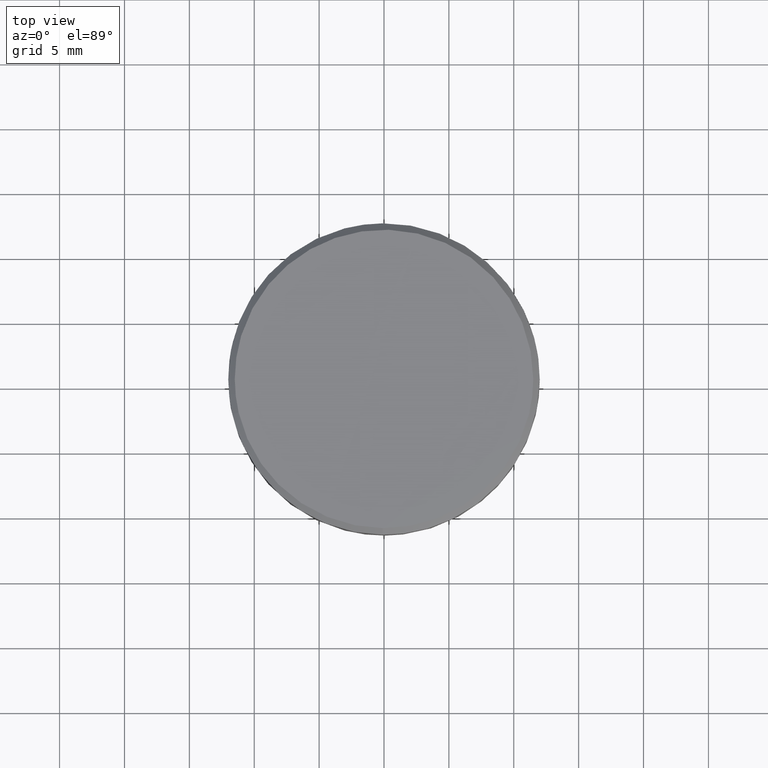
[diagram: clean part render]
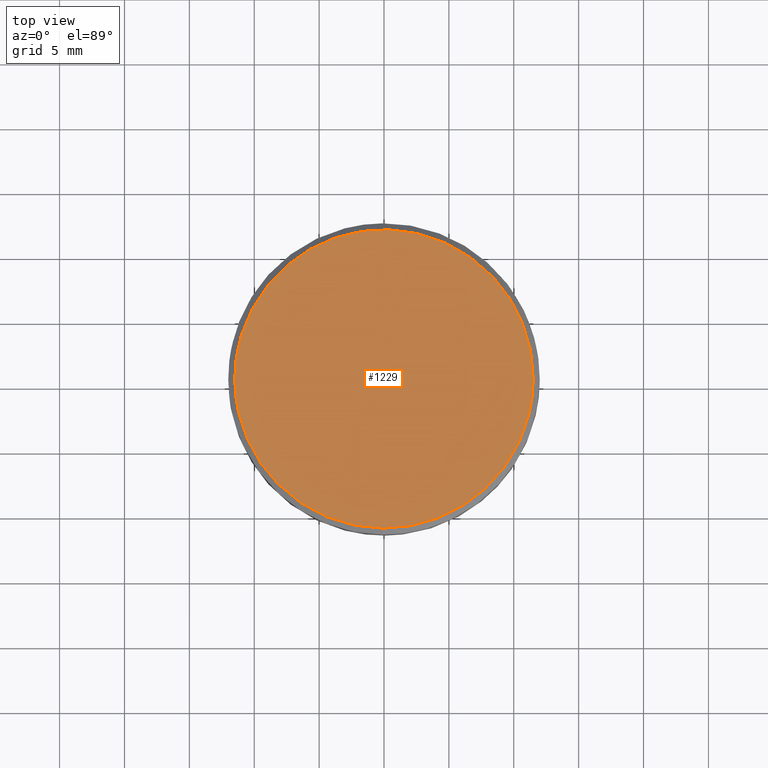
[diagram: same view with one face highlighted and labeled with its STEP entity id]
A machine part, top view. The second image highlights one B-rep face of the part: STEP entity #1229.
In plain terms, the highlighted face is a freeform B-spline surface patch.
Its self-contained STEP definition (entity closure, byte-faithful):
#288=CARTESIAN_POINT('',(-11.203508761551699,-2.594492518756421,14.999999999997851));
#289=VERTEX_POINT('',#288);
#295=CARTESIAN_POINT('',(-11.500000000000000,0.0,15.0));
#296=VERTEX_POINT('',#295);
#297=CARTESIAN_POINT('',(-11.500000000000000,0.0,15.0));
#298=CARTESIAN_POINT('',(-11.500000000000002,-1.314187347835726,14.999999999999998));
#299=CARTESIAN_POINT('',(-11.203508761551705,-2.594492518756421,14.999999999997852));
#307=(BOUNDED_CURVE()B_SPLINE_CURVE(2,(#297,#298,#299),.UNSPECIFIED.,.F.,.U.)B_SPLINE_CURVE_WITH_KNOTS((3,3),(0.500000000000000,0.538577028215916),.UNSPECIFIED.)CURVE()GEOMETRIC_REPRESENTATION_ITEM()RATIONAL_B_SPLINE_CURVE((1.0,0.954804200134332,0.923556557441934))REPRESENTATION_ITEM(''));
#308=EDGE_CURVE('',#296,#289,#307,.T.);
#310=CARTESIAN_POINT('',(11.500000000000000,0.0,15.0));
#311=VERTEX_POINT('',#310);
#312=CARTESIAN_POINT('',(11.500000000000000,0.0,15.0));
#313=CARTESIAN_POINT('',(11.500000000000000,11.500000000000000,14.999999999999995));
#314=CARTESIAN_POINT('',(0.0,11.500000000000000,15.0));
#315=CARTESIAN_POINT('',(-11.500000000000000,11.500000000000000,14.999999999999995));
#316=CARTESIAN_POINT('',(-11.500000000000000,0.0,15.0));
#324=(BOUNDED_CURVE()B_SPLINE_CURVE(2,(#312,#313,#314,#315,#316),.UNSPECIFIED.,.F.,.U.)B_SPLINE_CURVE_WITH_KNOTS((3,2,3),(0.0,0.250000000000000,0.500000000000000),.UNSPECIFIED.)CURVE()GEOMETRIC_REPRESENTATION_ITEM()RATIONAL_B_SPLINE_CURVE((1.0,0.707106781186548,1.0,0.707106781186548,1.0))REPRESENTATION_ITEM(''));
#325=EDGE_CURVE('',#311,#296,#324,.T.);
#327=CARTESIAN_POINT('',(-0.100355158268865,-11.499562115242730,14.999999999994881));
#328=VERTEX_POINT('',#327);
#329=CARTESIAN_POINT('',(-0.100355158268865,-11.499562115242728,14.999999999994886));
#330=CARTESIAN_POINT('',(-0.050178534475591,-11.499999999999996,14.999999999999998));
#331=CARTESIAN_POINT('',(0.0,-11.500000000000000,15.0));
#332=CARTESIAN_POINT('',(11.500000000000000,-11.500000000000000,14.999999999999995));
#333=CARTESIAN_POINT('',(11.500000000000000,0.0,15.0));
#341=(BOUNDED_CURVE()B_SPLINE_CURVE(2,(#329,#330,#331,#332,#333),.UNSPECIFIED.,.F.,.U.)B_SPLINE_CURVE_WITH_KNOTS((3,2,3),(0.748460105663863,0.750000000000000,1.0),.UNSPECIFIED.)CURVE()GEOMETRIC_REPRESENTATION_ITEM()RATIONAL_B_SPLINE_CURVE((0.996414028097746,0.998195901565025,1.0,0.707106781186548,1.0))REPRESENTATION_ITEM(''));
#342=EDGE_CURVE('',#328,#311,#341,.T.);
#444=CARTESIAN_POINT('',(-11.203508761551698,-2.594492518756420,14.999999999997854));
#445=CARTESIAN_POINT('',(-9.159593812550893,-11.420503337157657,14.999999999999995));
#446=CARTESIAN_POINT('',(-0.100355158268865,-11.499562115242725,14.999999999994884));
#454=(BOUNDED_CURVE()B_SPLINE_CURVE(2,(#444,#445,#446),.UNSPECIFIED.,.F.,.U.)B_SPLINE_CURVE_WITH_KNOTS((3,3),(0.538577028215916,0.748460105663863),.UNSPECIFIED.)CURVE()GEOMETRIC_REPRESENTATION_ITEM()RATIONAL_B_SPLINE_CURVE((0.923556557441935,0.753549905437348,0.996414028097745))REPRESENTATION_ITEM(''));
#455=EDGE_CURVE('',#289,#328,#454,.T.);
#1218=CARTESIAN_POINT('',(-12.648849955421539,-12.648390504168120,15.0));
#1219=CARTESIAN_POINT('',(12.648850572329611,-12.648390504168120,15.0));
#1220=CARTESIAN_POINT('',(-12.648849955421539,12.648828714536270,15.0));
#1221=CARTESIAN_POINT('',(12.648850572329611,12.648828714536270,15.0));
#1222=B_SPLINE_SURFACE_WITH_KNOTS('',1,1,((#1218,#1220),(#1219,#1221)),.UNSPECIFIED.,.F.,.F.,.U.,(2,2),(2,2),(0.0,25.297700527751150),(0.0,25.297219218704392),.UNSPECIFIED.);
#1223=ORIENTED_EDGE('',*,*,#325,.T.);
#1224=ORIENTED_EDGE('',*,*,#308,.T.);
#1225=ORIENTED_EDGE('',*,*,#455,.T.);
#1226=ORIENTED_EDGE('',*,*,#342,.T.);
#1227=EDGE_LOOP('',(#1223,#1224,#1225,#1226));
#1228=FACE_OUTER_BOUND('',#1227,.T.);
#1229=ADVANCED_FACE('',(#1228),#1222,.T.);